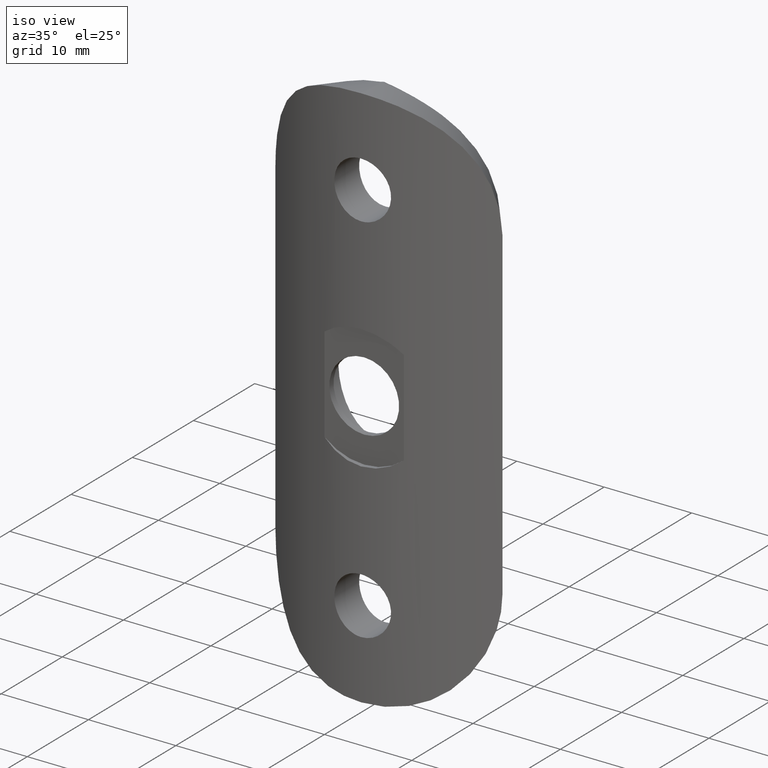
[diagram: clean part render]
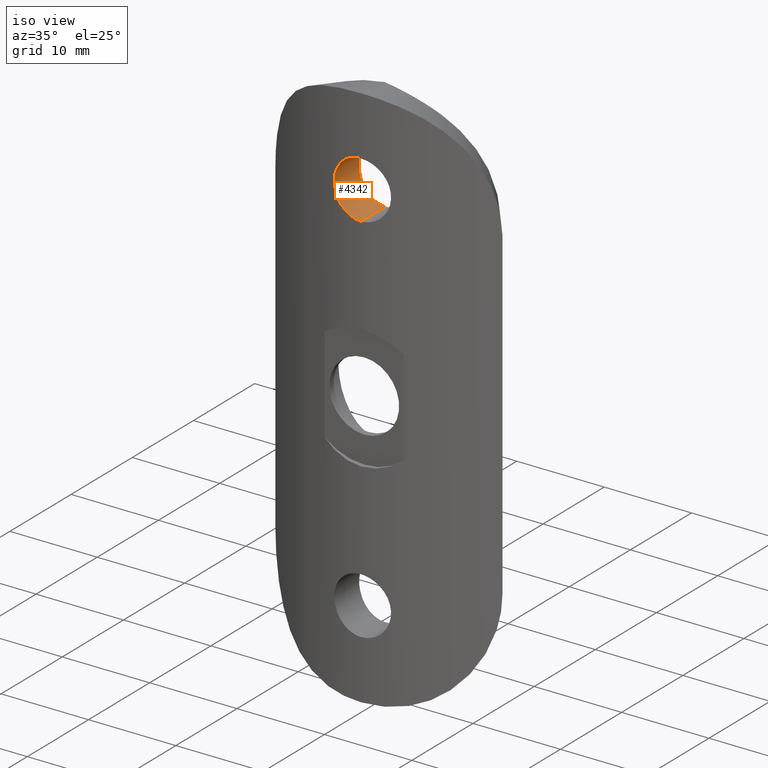
[diagram: same view with one face highlighted and labeled with its STEP entity id]
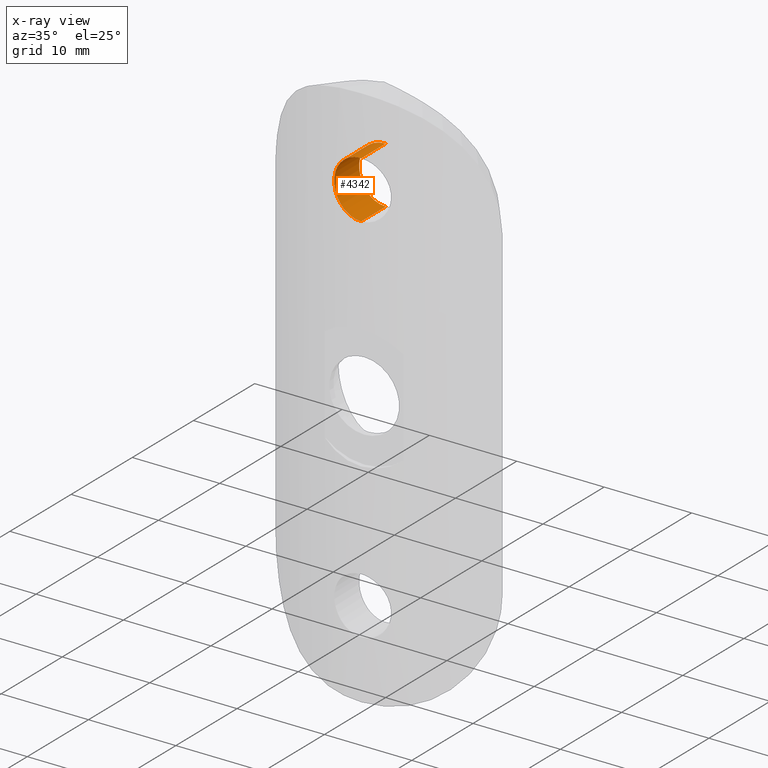
[diagram: x-ray of the same camera — body ghosted, the highlighted face saturated]
A machine part, iso view. The second image highlights one B-rep face of the part: STEP entity #4342.
The next image is the same camera in x-ray: the body ghosted, the highlighted face saturated — about 0% of this face is hidden behind the body in this view.
In plain terms, the highlighted cylindrical surface (edge-blend (fillet) strip) has radius 3.25 mm, axis along (-0, 1, -0).
Its self-contained STEP definition (entity closure, byte-faithful):
#40 = DIRECTION ( 'NONE',  ( -0.0000000000000000000, 1.000000000000000000, -0.0000000000000000000 ) ) ;
#53 = DIRECTION ( 'NONE',  ( -0.0000000000000000000, 1.000000000000000000, -0.0000000000000000000 ) ) ;
#126 = LINE ( 'NONE', #12227, #2042 ) ;
#175 = EDGE_CURVE ( 'NONE', #11620, #15351, #3775, .T. ) ;
#435 = VERTEX_POINT ( 'NONE', #8460 ) ;
#485 = CARTESIAN_POINT ( 'NONE',  ( -0.4233875294903806100, -3.996760221051988800, 18.27058619196105800 ) ) ;
#546 = CARTESIAN_POINT ( 'NONE',  ( -2.821682081450909200, -3.808527132807963100, 23.12657407540844500 ) ) ;
#596 = CARTESIAN_POINT ( 'NONE',  ( -2.146754771307998000, -3.889736771875800200, 19.05075325140589000 ) ) ;
#980 = CARTESIAN_POINT ( 'NONE',  ( -3.145418353337451100, 0.2961293717937748500, 20.65516165909083000 ) ) ;
#1624 = CARTESIAN_POINT ( 'NONE',  ( -1.052663593333552000, -3.974329779009402300, 24.58207343110227300 ) ) ;
#1679 = CARTESIAN_POINT ( 'NONE',  ( -1.983345368258381700, -3.906216068258572700, 18.91653155011069000 ) ) ;
#1783 = CARTESIAN_POINT ( 'NONE',  ( -3.249862481740943800, -3.745166759921350100, 21.28316636938445300 ) ) ;
#1888 = ORIENTED_EDGE ( 'NONE', *, *, #7858, .F. ) ;
#2042 = VECTOR ( 'NONE', #40, 1000.000000000000000 ) ;
#2114 = CARTESIAN_POINT ( 'NONE',  ( -2.919046461232861000, 0.2545608108619366000, 20.05527573336496500 ) ) ;
#2214 = CARTESIAN_POINT ( 'NONE',  ( -3.082926604103469500, 0.2842220926113293600, 20.44946489675438200 ) ) ;
#2467 = CARTESIAN_POINT ( 'NONE',  ( 3.980098594385254500E-016, 4.275631695863335800E-015, 18.25000000000000000 ) ) ;
#2882 = CARTESIAN_POINT ( 'NONE',  ( -3.082936625438859900, -3.770980503715080500, 20.44954956054234400 ) ) ;
#2929 = CARTESIAN_POINT ( 'NONE',  ( -2.446498271656226900, -3.856517901897796200, 19.35011351685360000 ) ) ;
#2950 = CARTESIAN_POINT ( 'NONE',  ( -0.2123273452876290900, 5.106655759877770000E-015, 18.25000000000000400 ) ) ;
#3029 = CARTESIAN_POINT ( 'NONE',  ( -1.443427539235932100, -3.950897296141890400, 24.41955376974149800 ) ) ;
#3253 = CARTESIAN_POINT ( 'NONE',  ( -1.053215275238733800, 0.03180657498034843200, 24.58188754262609900 ) ) ;
#3302 = CARTESIAN_POINT ( 'NONE',  ( -2.001016787975084600, 0.1165224218861978200, 24.09556557649312900 ) ) ;
#3464 = CARTESIAN_POINT ( 'NONE',  ( -0.4276890220517249900, 0.004120897769774846400, 24.72882950313450900 ) ) ;
#3539 = EDGE_LOOP ( 'NONE', ( #1888, #13278, #4633, #6962 ) ) ;
#3775 = B_SPLINE_CURVE_WITH_KNOTS ( 'NONE', 3,
 ( #2467, #2950, #7813, #15523, #4511, #8480, #9606, #9592, #4697, #9370, #13159, #7026, #2114, #2214, #980, #10656, #5746, #13269, #10821, #11888, #8112, #8160, #13112, #5904, #15606, #3302, #8229, #3253, #11823, #3464, #14355, #10714 ),
 .UNSPECIFIED., .F., .F.,
 ( 4, 2, 2, 2, 2, 2, 2, 2, 2, 2, 2, 2, 2, 2, 2, 4 ),
 ( 0.01018487875220696600, 0.01082127042733996500, 0.01145766210247296500, 0.01209405377760596300, 0.01273044545273896100, 0.01336683712787196100, 0.01400322880300495900, 0.01463962047813795900, 0.01527601215327095900, 0.01591240382840395900, 0.01654879550353696000, 0.01718518717866995800, 0.01782157885380295700, 0.01909436220406896700, 0.01973075387920197200, 0.02036714555433497300 ),
 .UNSPECIFIED. ) ;
#4213 = CARTESIAN_POINT ( 'NONE',  ( -1.048234291274114500, -3.974555081416436300, 18.41641084714279200 ) ) ;
#4262 = CARTESIAN_POINT ( 'NONE',  ( -0.8473534503845404600, -3.983833135744128600, 24.64488870500056400 ) ) ;
#4267 = CYLINDRICAL_SURFACE ( 'NONE', #13305, 3.249999999999999600 ) ;
#4314 = CARTESIAN_POINT ( 'NONE',  ( -0.2122267809761606800, -3.999999999999999100, 18.25000000000000000 ) ) ;
#4342 = ADVANCED_FACE ( 'NONE', ( #15228 ), #4267, .F. ) ;
#4511 = CARTESIAN_POINT ( 'NONE',  ( -1.048835084218625600, 0.03153038519526391700, 18.41661149994736500 ) ) ;
#4633 = ORIENTED_EDGE ( 'NONE', *, *, #175, .T. ) ;
#4697 = CARTESIAN_POINT ( 'NONE',  ( -2.146901082311378800, 0.1366460470933136800, 19.05088125390369300 ) ) ;
#5422 = CARTESIAN_POINT ( 'NONE',  ( -2.919308295932453200, -3.794780799135886600, 20.05584507911060000 ) ) ;
#5470 = CARTESIAN_POINT ( 'NONE',  ( -4.677810049403507700E-016, -4.000000000000000000, 24.74999999999999600 ) ) ;
#5746 = CARTESIAN_POINT ( 'NONE',  ( -3.249886891623715400, 0.3163756180069491900, 21.28368892068283100 ) ) ;
#5875 = VERTEX_POINT ( 'NONE', #8092 ) ;
#5904 = CARTESIAN_POINT ( 'NONE',  ( -2.585354106957344000, 0.1990918401650410600, 23.48082279583530900 ) ) ;
#6162 = DIRECTION ( 'NONE',  ( 0.0000000000000000000, 0.0000000000000000000, 1.000000000000000000 ) ) ;
#6648 = CARTESIAN_POINT ( 'NONE',  ( -3.229192406513823300, -3.748460063484965400, 21.92399563171616000 ) ) ;
#6753 = CARTESIAN_POINT ( 'NONE',  ( -2.583673285978473000, -3.839641233852200600, 19.51705774387416900 ) ) ;
#6962 = ORIENTED_EDGE ( 'NONE', *, *, #11775, .F. ) ;
#7026 = CARTESIAN_POINT ( 'NONE',  ( -2.819027516698466900, 0.2370592656101540600, 19.86893045365901900 ) ) ;
#7047 = VECTOR ( 'NONE', #13441, 1000.000000000000000 ) ;
#7813 = CARTESIAN_POINT ( 'NONE',  ( -0.4237194425279192100, 0.004012198503904774500, 18.27060457569355400 ) ) ;
#7858 = EDGE_CURVE ( 'NONE', #5875, #435, #12128, .T. ) ;
#7893 = CARTESIAN_POINT ( 'NONE',  ( -2.921349281780648300, -3.794490413398951200, 22.93996045745104000 ) ) ;
#7994 = CARTESIAN_POINT ( 'NONE',  ( -1.631418227057860100, -3.936841929434381700, 24.31899601894638300 ) ) ;
#8092 = CARTESIAN_POINT ( 'NONE',  ( 3.980101055473506600E-016, -4.000000000000000000, 18.25000000000000000 ) ) ;
#8112 = CARTESIAN_POINT ( 'NONE',  ( -3.083793188691174200, 0.2843863280313467800, 22.54780277147984400 ) ) ;
#8160 = CARTESIAN_POINT ( 'NONE',  ( -2.921070221033972300, 0.2549198398042866700, 22.94049291644473600 ) ) ;
#8229 = CARTESIAN_POINT ( 'NONE',  ( -1.639419273092649300, 0.07536514744673933300, 24.33795303212947700 ) ) ;
#8460 = CARTESIAN_POINT ( 'NONE',  ( -4.677810049403507700E-016, -4.000000000000000000, 24.74999999999999600 ) ) ;
#8480 = CARTESIAN_POINT ( 'NONE',  ( -1.440065730834426900, 0.06050370294348678100, 18.57877587867328400 ) ) ;
#9017 = LINE ( 'NONE', #10829, #7047 ) ;
#9056 = CARTESIAN_POINT ( 'NONE',  ( -2.819342144774540600, -3.808846335284412200, 19.86943644389239700 ) ) ;
#9103 = CARTESIAN_POINT ( 'NONE',  ( -1.439401000619265900, -3.951178193260259900, 18.57845213072969400 ) ) ;
#9152 = CARTESIAN_POINT ( 'NONE',  ( -2.150178831674786700, -3.889379150513410500, 23.94621632558336800 ) ) ;
#9209 = CARTESIAN_POINT ( 'NONE',  ( -2.449119810150481400, -3.856205077523528600, 23.64687108957696500 ) ) ;
#9370 = CARTESIAN_POINT ( 'NONE',  ( -2.446630481080480600, 0.1778860398142903500, 19.35026369552961300 ) ) ;
#9437 = CARTESIAN_POINT ( 'NONE',  ( 3.980098594385254500E-016, 4.275631695863335800E-015, 18.25000000000000000 ) ) ;
#9592 = CARTESIAN_POINT ( 'NONE',  ( -1.983641479765678100, 0.1162216720010650200, 18.91678980406262800 ) ) ;
#9606 = CARTESIAN_POINT ( 'NONE',  ( -1.629768385759159800, 0.07805838134314928300, 18.68013059780744800 ) ) ;
#10240 = CARTESIAN_POINT ( 'NONE',  ( -0.2150349722838902600, -4.000000000000000900, 24.75000000000000000 ) ) ;
#10289 = CARTESIAN_POINT ( 'NONE',  ( -3.228544471174093800, -3.748562175303643800, 21.07118339740451100 ) ) ;
#10395 = CARTESIAN_POINT ( 'NONE',  ( -1.986851713944307800, -3.905884541441843700, 24.08083014807419900 ) ) ;
#10492 = CARTESIAN_POINT ( 'NONE',  ( -1.040937877836706200E-016, 3.954882813776429800E-015, 24.74999999999999600 ) ) ;
#10656 = CARTESIAN_POINT ( 'NONE',  ( -3.228493774346181700, 0.3121308101101247200, 21.07077233454705800 ) ) ;
#10714 = CARTESIAN_POINT ( 'NONE',  ( -1.040937877836706200E-016, 3.954882813776429800E-015, 24.74999999999999600 ) ) ;
#10821 = CARTESIAN_POINT ( 'NONE',  ( -3.229174740627724000, 0.3122643638894230800, 21.92424574598258500 ) ) ;
#10829 = CARTESIAN_POINT ( 'NONE',  ( 0.0000000000000000000, 5.000000000000000000, 24.74999999999999600 ) ) ;
#10979 = CARTESIAN_POINT ( 'NONE',  ( 0.0000000000000000000, 5.000000000000000000, 21.50000000000000000 ) ) ;
#11453 = CARTESIAN_POINT ( 'NONE',  ( -3.146732883946636400, -3.761218128542534300, 22.33995717217593200 ) ) ;
#11620 = VERTEX_POINT ( 'NONE', #9437 ) ;
#11775 = EDGE_CURVE ( 'NONE', #435, #15351, #9017, .T. ) ;
#11823 = CARTESIAN_POINT ( 'NONE',  ( -0.8472009723319841000, 0.02000263995801098200, 24.64491786416992600 ) ) ;
#11888 = CARTESIAN_POINT ( 'NONE',  ( -3.146563842919865900, 0.2963476701418182900, 22.34064852401097300 ) ) ;
#12128 = B_SPLINE_CURVE_WITH_KNOTS ( 'NONE', 3,
 ( #15168, #4314, #485, #12887, #4213, #9103, #13975, #1679, #596, #2929, #6753, #9056, #5422, #2882, #14033, #10289, #1783, #15320, #6648, #11453, #15270, #7893, #546, #15380, #9209, #9152, #10395, #7994, #3029, #1624, #4262, #12837, #10240, #5470 ),
 .UNSPECIFIED., .F., .F.,
 ( 4, 2, 2, 2, 2, 2, 2, 2, 2, 2, 2, 2, 2, 2, 2, 2, 4 ),
 ( 0.01017650168365274000, 0.01081237613384125400, 0.01144825058402976700, 0.01208412503421828000, 0.01271999948440679500, 0.01335587393459531000, 0.01399174838478382500, 0.01462762283497233800, 0.01526349728516085400, 0.01589937173534936700, 0.01653524618553788000, 0.01717112063572639700, 0.01780699508591491000, 0.01844286953610342300, 0.01907874398629193900, 0.01971461843648045200, 0.02035049288666896500 ),
 .UNSPECIFIED. ) ;
#12227 = CARTESIAN_POINT ( 'NONE',  ( 3.980102097228897200E-016, 5.000000000000000000, 18.25000000000000000 ) ) ;
#12837 = CARTESIAN_POINT ( 'NONE',  ( -0.4274974284578624300, -3.996674961407405300, 24.72886648614968400 ) ) ;
#12887 = CARTESIAN_POINT ( 'NONE',  ( -0.8435205793629869700, -3.983990058228274600, 18.35407508419675400 ) ) ;
#13112 = CARTESIAN_POINT ( 'NONE',  ( -2.821407994228280400, 0.2374609004004334100, 23.12707459477639600 ) ) ;
#13159 = CARTESIAN_POINT ( 'NONE',  ( -2.583650268439078100, 0.1988298526906153200, 19.51705892793084000 ) ) ;
#13269 = CARTESIAN_POINT ( 'NONE',  ( -3.250112212707315900, 0.3164199092273574700, 21.71289879331213900 ) ) ;
#13278 = ORIENTED_EDGE ( 'NONE', *, *, #14373, .T. ) ;
#13305 = AXIS2_PLACEMENT_3D ( 'NONE', #10979, #53, #6162 ) ;
#13441 = DIRECTION ( 'NONE',  ( -0.0000000000000000000, 1.000000000000000000, -0.0000000000000000000 ) ) ;
#13975 = CARTESIAN_POINT ( 'NONE',  ( -1.628793636270004000, -3.937043936367517800, 18.67953915612858800 ) ) ;
#14033 = CARTESIAN_POINT ( 'NONE',  ( -3.145552963250630300, -3.761398779500239300, 20.65567800194741100 ) ) ;
#14355 = CARTESIAN_POINT ( 'NONE',  ( -0.2152229943715045200, 3.442977172351917300E-015, 24.74999999999999600 ) ) ;
#14373 = EDGE_CURVE ( 'NONE', #5875, #11620, #126, .T. ) ;
#15168 = CARTESIAN_POINT ( 'NONE',  ( 3.980101055473506600E-016, -4.000000000000000000, 18.25000000000000000 ) ) ;
#15228 = FACE_OUTER_BOUND ( 'NONE', #3539, .T. ) ;
#15270 = CARTESIAN_POINT ( 'NONE',  ( -3.084146353678852000, -3.770797931316115300, 22.54680896742068800 ) ) ;
#15320 = CARTESIAN_POINT ( 'NONE',  ( -3.250136198457131100, -3.745123566288097300, 21.71269147860681400 ) ) ;
#15351 = VERTEX_POINT ( 'NONE', #10492 ) ;
#15380 = CARTESIAN_POINT ( 'NONE',  ( -2.585924615477654500, -3.839360235367614800, 23.48005729074659300 ) ) ;
#15523 = CARTESIAN_POINT ( 'NONE',  ( -0.8445774566737834800, 0.01986238636742874300, 18.35433283830186500 ) ) ;
#15606 = CARTESIAN_POINT ( 'NONE',  ( -2.448882033043936700, 0.1782218465160914400, 23.64711643842227000 ) ) ;